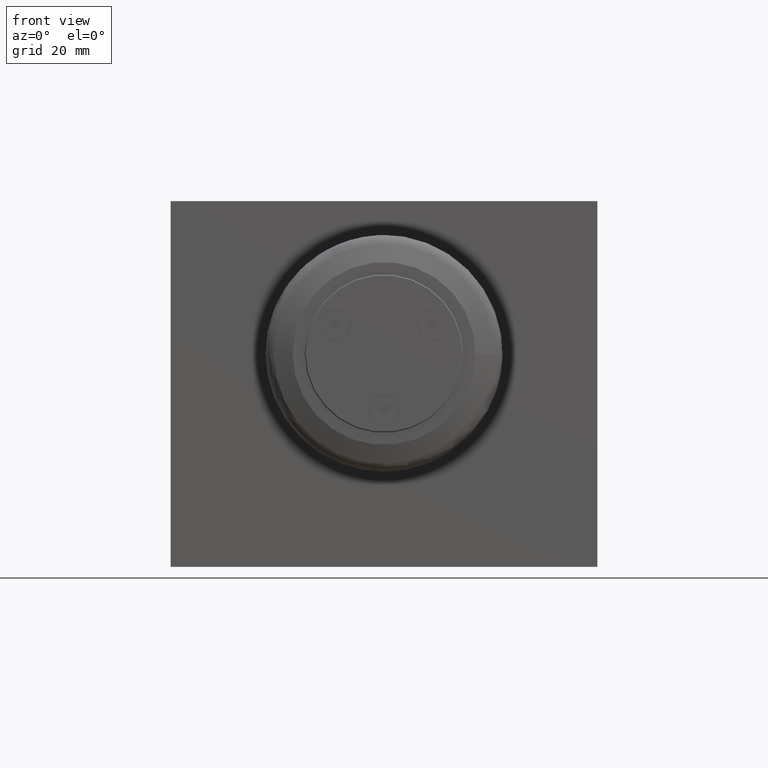
[diagram: clean part render]
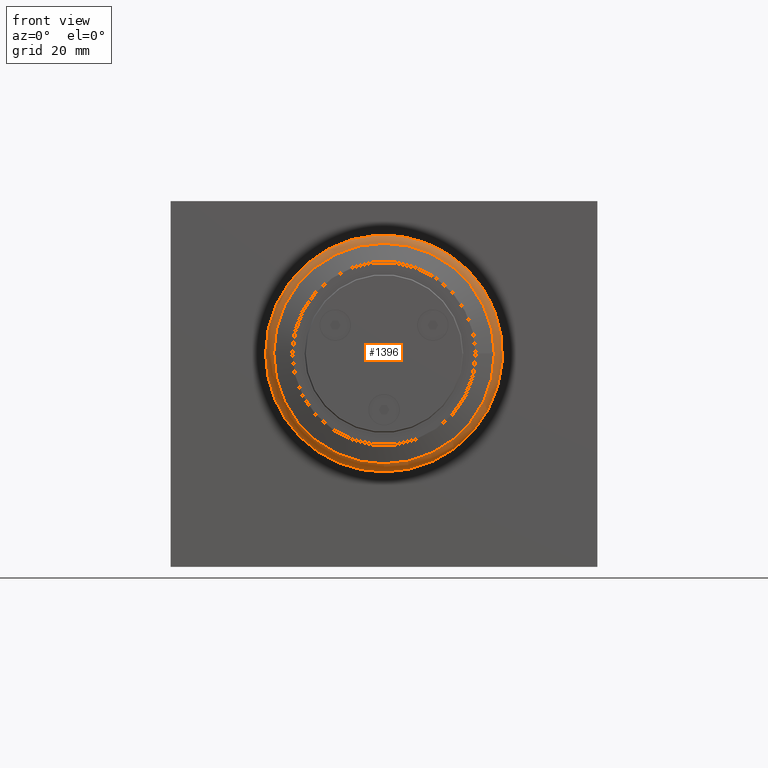
[diagram: same view with one face highlighted and labeled with its STEP entity id]
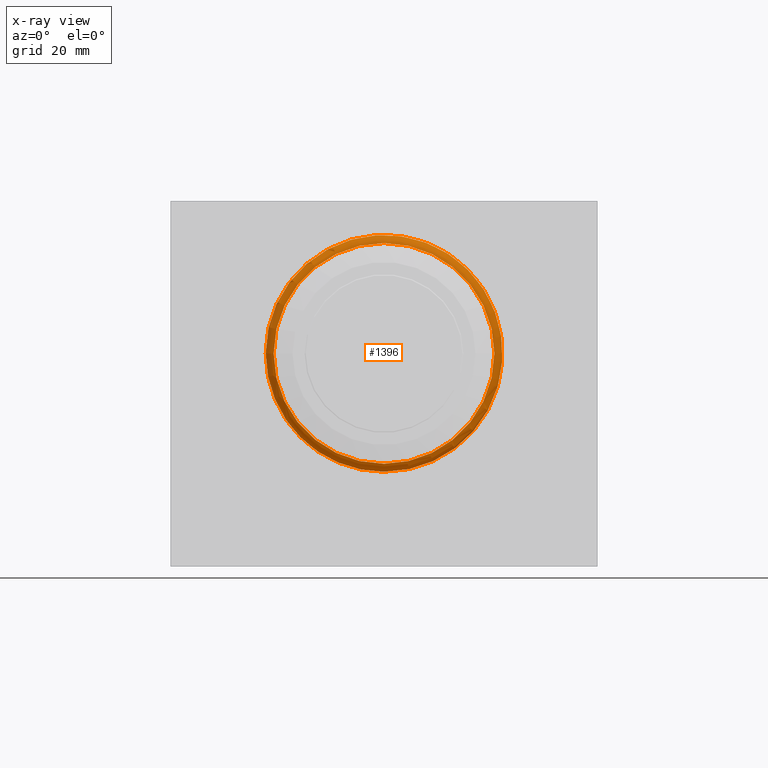
[diagram: x-ray of the same camera — body ghosted, the highlighted face saturated]
A machine part, front view. The second image highlights one B-rep face of the part: STEP entity #1396.
The next image is the same camera in x-ray: the body ghosted, the highlighted face saturated — about 0% of this face is hidden behind the body in this view.
In plain terms, the highlighted toroidal blend (fillet) surface has major radius 34.8284 mm and minor (blend) radius 4 mm.
Its self-contained STEP definition (entity closure, byte-faithful):
#16=TOROIDAL_SURFACE('',#1521,34.8283796025951,4.);
#77=CIRCLE('',#1522,36.1964601758978);
#78=CIRCLE('',#1523,36.1964601758978);
#79=CIRCLE('',#1524,4.);
#80=CIRCLE('',#1525,38.8282553474377);
#81=CIRCLE('',#1526,38.8282553474377);
#82=CIRCLE('',#1527,36.1964601758978);
#173=FACE_OUTER_BOUND('',#262,.T.);
#262=EDGE_LOOP('',(#1077,#1078,#1079,#1080,#1081,#1082,#1083));
#640=VERTEX_POINT('',#2213);
#641=VERTEX_POINT('',#2214);
#642=VERTEX_POINT('',#2216);
#643=VERTEX_POINT('',#2218);
#644=VERTEX_POINT('',#2220);
#803=EDGE_CURVE('',#640,#641,#77,.T.);
#804=EDGE_CURVE('',#641,#642,#78,.T.);
#805=EDGE_CURVE('',#642,#643,#79,.T.);
#806=EDGE_CURVE('',#643,#644,#80,.T.);
#807=EDGE_CURVE('',#644,#643,#81,.T.);
#808=EDGE_CURVE('',#642,#640,#82,.T.);
#1077=ORIENTED_EDGE('',*,*,#803,.T.);
#1078=ORIENTED_EDGE('',*,*,#804,.T.);
#1079=ORIENTED_EDGE('',*,*,#805,.T.);
#1080=ORIENTED_EDGE('',*,*,#806,.T.);
#1081=ORIENTED_EDGE('',*,*,#807,.T.);
#1082=ORIENTED_EDGE('',*,*,#805,.F.);
#1083=ORIENTED_EDGE('',*,*,#808,.T.);
#1396=ADVANCED_FACE('',(#173),#16,.T.);
#1521=AXIS2_PLACEMENT_3D('',#2212,#1796,#1797);
#1522=AXIS2_PLACEMENT_3D('',#2215,#1798,#1799);
#1523=AXIS2_PLACEMENT_3D('',#2217,#1800,#1801);
#1524=AXIS2_PLACEMENT_3D('',#2219,#1802,#1803);
#1525=AXIS2_PLACEMENT_3D('',#2221,#1804,#1805);
#1526=AXIS2_PLACEMENT_3D('',#2222,#1806,#1807);
#1527=AXIS2_PLACEMENT_3D('',#2223,#1808,#1809);
#1796=DIRECTION('center_axis',(-2.44929359829471E-16,-1.,-1.82724206136224E-16));
#1797=DIRECTION('ref_axis',(0.,-1.82995721951943E-16,1.));
#1798=DIRECTION('center_axis',(1.22464679914735E-16,1.,1.82724206136224E-16));
#1799=DIRECTION('ref_axis',(1.,-1.22464679914735E-16,-1.82724206136224E-16));
#1800=DIRECTION('center_axis',(1.22464679914735E-16,1.,1.82724206136224E-16));
#1801=DIRECTION('ref_axis',(1.,-1.22464679914735E-16,-1.82724206136224E-16));
#1802=DIRECTION('center_axis',(1.,-2.44929359829471E-16,-5.60262812865266E-32));
#1803=DIRECTION('ref_axis',(0.,2.28744652439929E-16,-1.));
#1804=DIRECTION('center_axis',(-2.44929359829471E-16,-1.,-1.82724206136224E-16));
#1805=DIRECTION('ref_axis',(1.,-2.36837372140107E-16,-3.05184841518461E-16));
#1806=DIRECTION('center_axis',(-2.44929359829471E-16,-1.,-1.82724206136224E-16));
#1807=DIRECTION('ref_axis',(1.,-2.36837372140107E-16,-3.05184841518461E-16));
#1808=DIRECTION('center_axis',(1.22464679914735E-16,1.,1.82724206136224E-16));
#1809=DIRECTION('ref_axis',(1.,-1.22464679914735E-16,-1.82724206136224E-16));
#2212=CARTESIAN_POINT('Origin',(70.,-26.9859024550136,70.));
#2213=CARTESIAN_POINT('',(33.8035398241022,-30.7446729381573,70.));
#2214=CARTESIAN_POINT('',(106.196460175898,-30.7446729381573,70.));
#2215=CARTESIAN_POINT('Origin',(70.,-30.7446729381573,70.));
#2216=CARTESIAN_POINT('',(70.,-30.7446729381573,33.8035398241022));
#2217=CARTESIAN_POINT('Origin',(70.,-30.7446729381573,70.));
#2218=CARTESIAN_POINT('',(70.,-27.0174306300424,31.1717446525623));
#2219=CARTESIAN_POINT('Origin',(70.,-26.9859024550136,35.1716203974049));
#2220=CARTESIAN_POINT('',(31.1717446525623,-27.0174306300424,70.));
#2221=CARTESIAN_POINT('Origin',(70.,-27.0174306300424,70.));
#2222=CARTESIAN_POINT('Origin',(70.,-27.0174306300424,70.));
#2223=CARTESIAN_POINT('Origin',(70.,-30.7446729381573,70.));